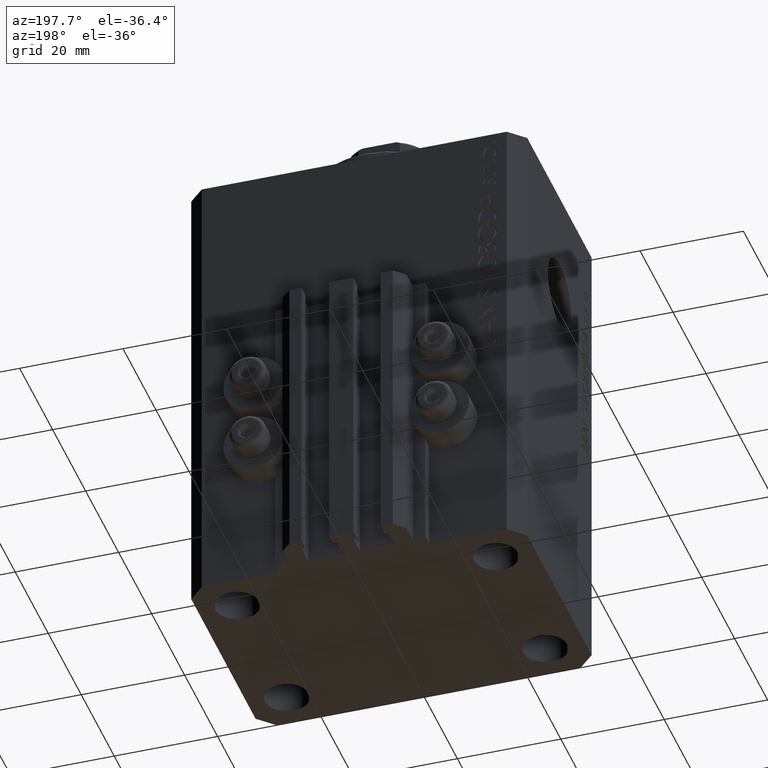
[diagram: clean part render]
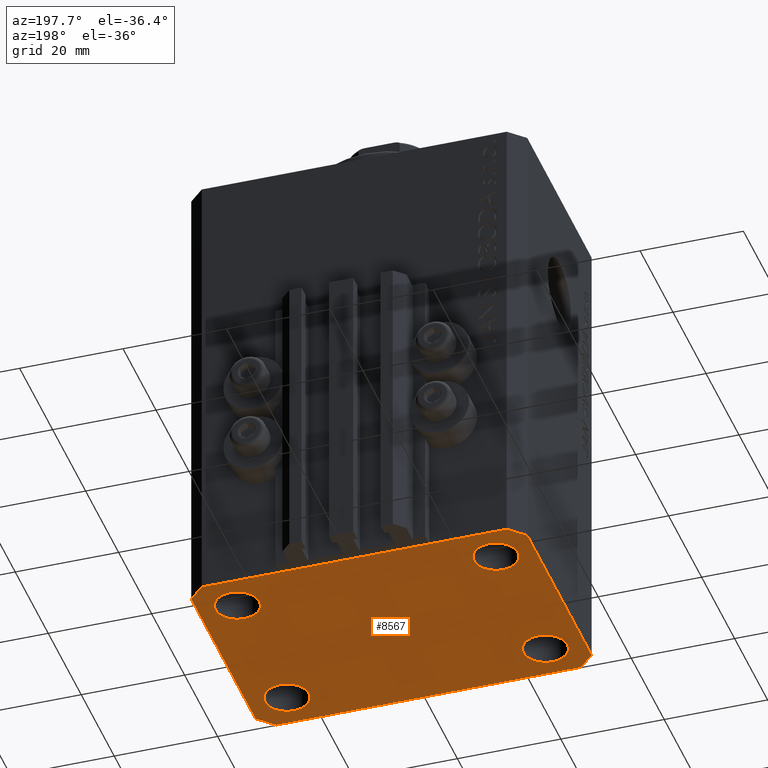
[diagram: same view with one face highlighted and labeled with its STEP entity id]
A machine part, auxiliary view. The second image highlights one B-rep face of the part: STEP entity #8567.
In plain terms, the highlighted planar face has unit normal (0, 0, 1).
Its self-contained STEP definition (entity closure, byte-faithful):
#214 = DIRECTION ( 'NONE',  ( -0.000000000000000000, -0.000000000000000000, -1.000000000000000000 ) ) ;
#317 = CIRCLE ( 'NONE', #27007, 4.250000000040370374 ) ;
#922 = ORIENTED_EDGE ( 'NONE', *, *, #25511, .F. ) ;
#1046 = EDGE_CURVE ( 'NONE', #31947, #38731, #37298, .T. ) ;
#1166 = CIRCLE ( 'NONE', #6570, 4.250000000040370374 ) ;
#1209 = EDGE_CURVE ( 'NONE', #45450, #40360, #13478, .T. ) ;
#1364 = VERTEX_POINT ( 'NONE', #37745 ) ;
#1832 = VECTOR ( 'NONE', #20699, 1000.000000000000000 ) ;
#2151 = AXIS2_PLACEMENT_3D ( 'NONE', #15269, #29821, #8359 ) ;
#2379 = DIRECTION ( 'NONE',  ( 1.000000000000000000, 0.000000000000000000, 0.000000000000000000 ) ) ;
#2954 = ORIENTED_EDGE ( 'NONE', *, *, #34347, .F. ) ;
#3028 = VECTOR ( 'NONE', #8937, 1000.000000000000000 ) ;
#3525 = CIRCLE ( 'NONE', #17215, 4.250000000021375790 ) ;
#3661 = ORIENTED_EDGE ( 'NONE', *, *, #44060, .F. ) ;
#3824 = CARTESIAN_POINT ( 'NONE',  ( -24.99999999999999289, -15.00000000000000355, -91.00000000000000000 ) ) ;
#4056 = ORIENTED_EDGE ( 'NONE', *, *, #1209, .F. ) ;
#4089 = VERTEX_POINT ( 'NONE', #32042 ) ;
#5653 = VERTEX_POINT ( 'NONE', #10246 ) ;
#5884 = DIRECTION ( 'NONE',  ( -0.7071067811865474617, -0.7071067811865474617, 0.000000000000000000 ) ) ;
#6010 = EDGE_LOOP ( 'NONE', ( #28945, #35156 ) ) ;
#6406 = VECTOR ( 'NONE', #12938, 1000.000000000000000 ) ;
#6570 = AXIS2_PLACEMENT_3D ( 'NONE', #3824, #214, #14784 ) ;
#7035 = CIRCLE ( 'NONE', #46654, 4.250000000021375790 ) ;
#8143 = DIRECTION ( 'NONE',  ( -0.000000000000000000, -0.000000000000000000, -1.000000000000000000 ) ) ;
#8359 = DIRECTION ( 'NONE',  ( 1.000000000000000000, 0.000000000000000000, 0.000000000000000000 ) ) ;
#8567 = ADVANCED_FACE ( 'NONE', ( #18133, #14555, #39845, #28856, #25522 ), #40065, .F. ) ;
#8576 = ORIENTED_EDGE ( 'NONE', *, *, #22909, .F. ) ;
#8937 = DIRECTION ( 'NONE',  ( 1.000000000000000000, 1.176083712526788232E-16, 0.000000000000000000 ) ) ;
#8979 = EDGE_CURVE ( 'NONE', #38731, #31947, #21451, .T. ) ;
#9449 = EDGE_LOOP ( 'NONE', ( #26906, #922 ) ) ;
#9533 = VERTEX_POINT ( 'NONE', #39432 ) ;
#9567 = VERTEX_POINT ( 'NONE', #33426 ) ;
#9920 = AXIS2_PLACEMENT_3D ( 'NONE', #33271, #41145, #12058 ) ;
#9950 = CARTESIAN_POINT ( 'NONE',  ( -29.49999999999650413, 22.49999999999949907, -91.00000000000000000 ) ) ;
#10246 = CARTESIAN_POINT ( 'NONE',  ( -29.25000000002137668, 14.99999999999999645, -91.00000000000000000 ) ) ;
#10442 = CARTESIAN_POINT ( 'NONE',  ( -29.49999999999650413, 22.49999999999949907, -91.00000000000000000 ) ) ;
#10535 = VERTEX_POINT ( 'NONE', #41064 ) ;
#10890 = CARTESIAN_POINT ( 'NONE',  ( -29.49999999999650413, -22.49999999999949907, -91.00000000000000000 ) ) ;
#11631 = VECTOR ( 'NONE', #41538, 1000.000000000000114 ) ;
#12058 = DIRECTION ( 'NONE',  ( 1.000000000000000000, 0.000000000000000000, 0.000000000000000000 ) ) ;
#12396 = VERTEX_POINT ( 'NONE', #23021 ) ;
#12466 = LINE ( 'NONE', #26999, #11631 ) ;
#12938 = DIRECTION ( 'NONE',  ( 1.334402673828349134E-14, 1.000000000000000000, 0.000000000000000000 ) ) ;
#13379 = CARTESIAN_POINT ( 'NONE',  ( -24.99999999999999289, -15.00000000000000355, -91.00000000000000000 ) ) ;
#13478 = LINE ( 'NONE', #45904, #3028 ) ;
#13620 = CARTESIAN_POINT ( 'NONE',  ( 0.000000000000000000, 0.000000000000000000, -91.00000000000000000 ) ) ;
#13788 = LINE ( 'NONE', #45973, #1832 ) ;
#14555 = FACE_BOUND ( 'NONE', #6010, .T. ) ;
#14566 = AXIS2_PLACEMENT_3D ( 'NONE', #13620, #29100, #42964 ) ;
#14784 = DIRECTION ( 'NONE',  ( 1.000000000000000000, 0.000000000000000000, 0.000000000000000000 ) ) ;
#15269 = CARTESIAN_POINT ( 'NONE',  ( 24.99999999999999289, -15.00000000000000355, -91.00000000000000000 ) ) ;
#15899 = ORIENTED_EDGE ( 'NONE', *, *, #37090, .F. ) ;
#16383 = DIRECTION ( 'NONE',  ( -0.7071067811865344721, 0.7071067811865606734, 0.000000000000000000 ) ) ;
#16411 = DIRECTION ( 'NONE',  ( 1.000000000000000000, 0.000000000000000000, 0.000000000000000000 ) ) ;
#16602 = LINE ( 'NONE', #9950, #31035 ) ;
#16833 = EDGE_CURVE ( 'NONE', #4089, #21999, #43317, .T. ) ;
#17215 = AXIS2_PLACEMENT_3D ( 'NONE', #41282, #8143, #26491 ) ;
#17771 = EDGE_CURVE ( 'NONE', #21999, #4089, #36490, .T. ) ;
#17954 = VERTEX_POINT ( 'NONE', #37863 ) ;
#18077 = DIRECTION ( 'NONE',  ( 0.000000000000000000, -1.000000000000000000, 0.000000000000000000 ) ) ;
#18133 = FACE_BOUND ( 'NONE', #41412, .T. ) ;
#18379 = AXIS2_PLACEMENT_3D ( 'NONE', #36656, #33771, #40232 ) ;
#19325 = ORIENTED_EDGE ( 'NONE', *, *, #36196, .F. ) ;
#20086 = LINE ( 'NONE', #42024, #6406 ) ;
#20582 = EDGE_CURVE ( 'NONE', #12396, #28706, #40188, .T. ) ;
#20699 = DIRECTION ( 'NONE',  ( 0.7071067811865483499, 0.7071067811865466846, 0.000000000000000000 ) ) ;
#21260 = ORIENTED_EDGE ( 'NONE', *, *, #31847, .F. ) ;
#21451 = CIRCLE ( 'NONE', #18379, 4.249999999957291053 ) ;
#21647 = LINE ( 'NONE', #36200, #28292 ) ;
#21833 = DIRECTION ( 'NONE',  ( -1.000000000000000000, -3.528251137580330676E-16, 0.000000000000000000 ) ) ;
#21999 = VERTEX_POINT ( 'NONE', #42835 ) ;
#22065 = EDGE_LOOP ( 'NONE', ( #25759, #44409 ) ) ;
#22534 = CARTESIAN_POINT ( 'NONE',  ( 20.75000000004271072, 14.99999999999999289, -91.00000000000000000 ) ) ;
#22909 = EDGE_CURVE ( 'NONE', #1364, #24368, #21647, .T. ) ;
#23021 = CARTESIAN_POINT ( 'NONE',  ( 29.49999999999707967, 22.49999999999952038, -91.00000000000000000 ) ) ;
#24251 = LINE ( 'NONE', #46448, #40559 ) ;
#24360 = ORIENTED_EDGE ( 'NONE', *, *, #27379, .F. ) ;
#24368 = VERTEX_POINT ( 'NONE', #27045 ) ;
#25511 = EDGE_CURVE ( 'NONE', #5653, #9533, #7035, .T. ) ;
#25522 = FACE_OUTER_BOUND ( 'NONE', #45986, .T. ) ;
#25759 = ORIENTED_EDGE ( 'NONE', *, *, #1046, .F. ) ;
#25925 = VECTOR ( 'NONE', #21833, 1000.000000000000000 ) ;
#26491 = DIRECTION ( 'NONE',  ( 1.000000000000000000, 0.000000000000000000, 0.000000000000000000 ) ) ;
#26906 = ORIENTED_EDGE ( 'NONE', *, *, #40914, .F. ) ;
#26999 = CARTESIAN_POINT ( 'NONE',  ( -32.49999999999650413, -19.49999999999949907, -91.00000000000000000 ) ) ;
#27007 = AXIS2_PLACEMENT_3D ( 'NONE', #13379, #27914, #41738 ) ;
#27045 = CARTESIAN_POINT ( 'NONE',  ( -32.49999999999650413, -19.49999999999949907, -91.00000000000000000 ) ) ;
#27379 = EDGE_CURVE ( 'NONE', #24368, #45450, #12466, .T. ) ;
#27427 = CARTESIAN_POINT ( 'NONE',  ( 24.99999999999999289, -15.00000000000000355, -91.00000000000000000 ) ) ;
#27914 = DIRECTION ( 'NONE',  ( -0.000000000000000000, -0.000000000000000000, -1.000000000000000000 ) ) ;
#28083 = CARTESIAN_POINT ( 'NONE',  ( 29.49999999999650413, -22.49999999999949196, -91.00000000000000000 ) ) ;
#28292 = VECTOR ( 'NONE', #18077, 1000.000000000000000 ) ;
#28401 = CARTESIAN_POINT ( 'NONE',  ( 32.49999999999651124, -19.49999999999949196, -91.00000000000000000 ) ) ;
#28706 = VERTEX_POINT ( 'NONE', #10442 ) ;
#28856 = FACE_BOUND ( 'NONE', #9449, .T. ) ;
#28945 = ORIENTED_EDGE ( 'NONE', *, *, #17771, .F. ) ;
#29100 = DIRECTION ( 'NONE',  ( 0.000000000000000000, 0.000000000000000000, 1.000000000000000000 ) ) ;
#29821 = DIRECTION ( 'NONE',  ( -0.000000000000000000, -0.000000000000000000, -1.000000000000000000 ) ) ;
#31035 = VECTOR ( 'NONE', #5884, 1000.000000000000114 ) ;
#31205 = CARTESIAN_POINT ( 'NONE',  ( -25.00000000000000000, 14.99999999999999645, -91.00000000000000000 ) ) ;
#31847 = EDGE_CURVE ( 'NONE', #10535, #12396, #24251, .T. ) ;
#31947 = VERTEX_POINT ( 'NONE', #34974 ) ;
#32042 = CARTESIAN_POINT ( 'NONE',  ( 20.75000000002367884, -15.00000000000000355, -91.00000000000000000 ) ) ;
#33271 = CARTESIAN_POINT ( 'NONE',  ( 25.00000000000000000, 14.99999999999999289, -91.00000000000000000 ) ) ;
#33426 = CARTESIAN_POINT ( 'NONE',  ( -20.74999999995962341, -15.00000000000000355, -91.00000000000000000 ) ) ;
#33771 = DIRECTION ( 'NONE',  ( -0.000000000000000000, -0.000000000000000000, -1.000000000000000000 ) ) ;
#34347 = EDGE_CURVE ( 'NONE', #37201, #10535, #20086, .T. ) ;
#34830 = ORIENTED_EDGE ( 'NONE', *, *, #45337, .F. ) ;
#34974 = CARTESIAN_POINT ( 'NONE',  ( 29.24999999995729283, 14.99999999999999289, -91.00000000000000000 ) ) ;
#35156 = ORIENTED_EDGE ( 'NONE', *, *, #16833, .F. ) ;
#35537 = DIRECTION ( 'NONE',  ( -0.000000000000000000, -0.000000000000000000, -1.000000000000000000 ) ) ;
#36158 = CARTESIAN_POINT ( 'NONE',  ( 29.49999999999707967, 22.49999999999952038, -91.00000000000000000 ) ) ;
#36196 = EDGE_CURVE ( 'NONE', #40360, #37201, #13788, .T. ) ;
#36200 = CARTESIAN_POINT ( 'NONE',  ( -32.49999999999650413, 19.49999999999949907, -91.00000000000000000 ) ) ;
#36490 = CIRCLE ( 'NONE', #42594, 4.249999999976314058 ) ;
#36656 = CARTESIAN_POINT ( 'NONE',  ( 25.00000000000000000, 14.99999999999999289, -91.00000000000000000 ) ) ;
#37090 = EDGE_CURVE ( 'NONE', #9567, #17954, #317, .T. ) ;
#37201 = VERTEX_POINT ( 'NONE', #28401 ) ;
#37298 = CIRCLE ( 'NONE', #9920, 4.249999999957291053 ) ;
#37745 = CARTESIAN_POINT ( 'NONE',  ( -32.49999999999650413, 19.49999999999949907, -91.00000000000000000 ) ) ;
#37863 = CARTESIAN_POINT ( 'NONE',  ( -29.25000000004036593, -15.00000000000000355, -91.00000000000000000 ) ) ;
#37895 = ORIENTED_EDGE ( 'NONE', *, *, #20582, .F. ) ;
#38122 = DIRECTION ( 'NONE',  ( -0.000000000000000000, -0.000000000000000000, -1.000000000000000000 ) ) ;
#38731 = VERTEX_POINT ( 'NONE', #22534 ) ;
#39432 = CARTESIAN_POINT ( 'NONE',  ( -20.74999999997862687, 14.99999999999999645, -91.00000000000000000 ) ) ;
#39845 = FACE_BOUND ( 'NONE', #22065, .T. ) ;
#40065 = PLANE ( 'NONE',  #14566 ) ;
#40188 = LINE ( 'NONE', #36158, #25925 ) ;
#40232 = DIRECTION ( 'NONE',  ( 1.000000000000000000, 0.000000000000000000, 0.000000000000000000 ) ) ;
#40360 = VERTEX_POINT ( 'NONE', #28083 ) ;
#40559 = VECTOR ( 'NONE', #16383, 1000.000000000000000 ) ;
#40914 = EDGE_CURVE ( 'NONE', #9533, #5653, #3525, .T. ) ;
#41064 = CARTESIAN_POINT ( 'NONE',  ( 32.49999999999702993, 19.49999999999945999, -91.00000000000000000 ) ) ;
#41145 = DIRECTION ( 'NONE',  ( -0.000000000000000000, -0.000000000000000000, -1.000000000000000000 ) ) ;
#41282 = CARTESIAN_POINT ( 'NONE',  ( -25.00000000000000000, 14.99999999999999645, -91.00000000000000000 ) ) ;
#41412 = EDGE_LOOP ( 'NONE', ( #15899, #3661 ) ) ;
#41538 = DIRECTION ( 'NONE',  ( 0.7071067811865474617, -0.7071067811865474617, 0.000000000000000000 ) ) ;
#41738 = DIRECTION ( 'NONE',  ( 1.000000000000000000, 0.000000000000000000, 0.000000000000000000 ) ) ;
#42024 = CARTESIAN_POINT ( 'NONE',  ( 32.49999999999651124, -19.49999999999949196, -91.00000000000000000 ) ) ;
#42594 = AXIS2_PLACEMENT_3D ( 'NONE', #27427, #35537, #2379 ) ;
#42835 = CARTESIAN_POINT ( 'NONE',  ( 29.24999999997631051, -15.00000000000000355, -91.00000000000000000 ) ) ;
#42964 = DIRECTION ( 'NONE',  ( 1.000000000000000000, 0.000000000000000000, -0.000000000000000000 ) ) ;
#43317 = CIRCLE ( 'NONE', #2151, 4.249999999976314058 ) ;
#44060 = EDGE_CURVE ( 'NONE', #17954, #9567, #1166, .T. ) ;
#44409 = ORIENTED_EDGE ( 'NONE', *, *, #8979, .F. ) ;
#45337 = EDGE_CURVE ( 'NONE', #28706, #1364, #16602, .T. ) ;
#45450 = VERTEX_POINT ( 'NONE', #10890 ) ;
#45904 = CARTESIAN_POINT ( 'NONE',  ( -29.49999999999650413, -22.49999999999949907, -91.00000000000000000 ) ) ;
#45973 = CARTESIAN_POINT ( 'NONE',  ( 29.49999999999650413, -22.49999999999949196, -91.00000000000000000 ) ) ;
#45986 = EDGE_LOOP ( 'NONE', ( #37895, #21260, #2954, #19325, #4056, #24360, #8576, #34830 ) ) ;
#46448 = CARTESIAN_POINT ( 'NONE',  ( 32.49999999999702993, 19.49999999999945999, -91.00000000000000000 ) ) ;
#46654 = AXIS2_PLACEMENT_3D ( 'NONE', #31205, #38122, #16411 ) ;